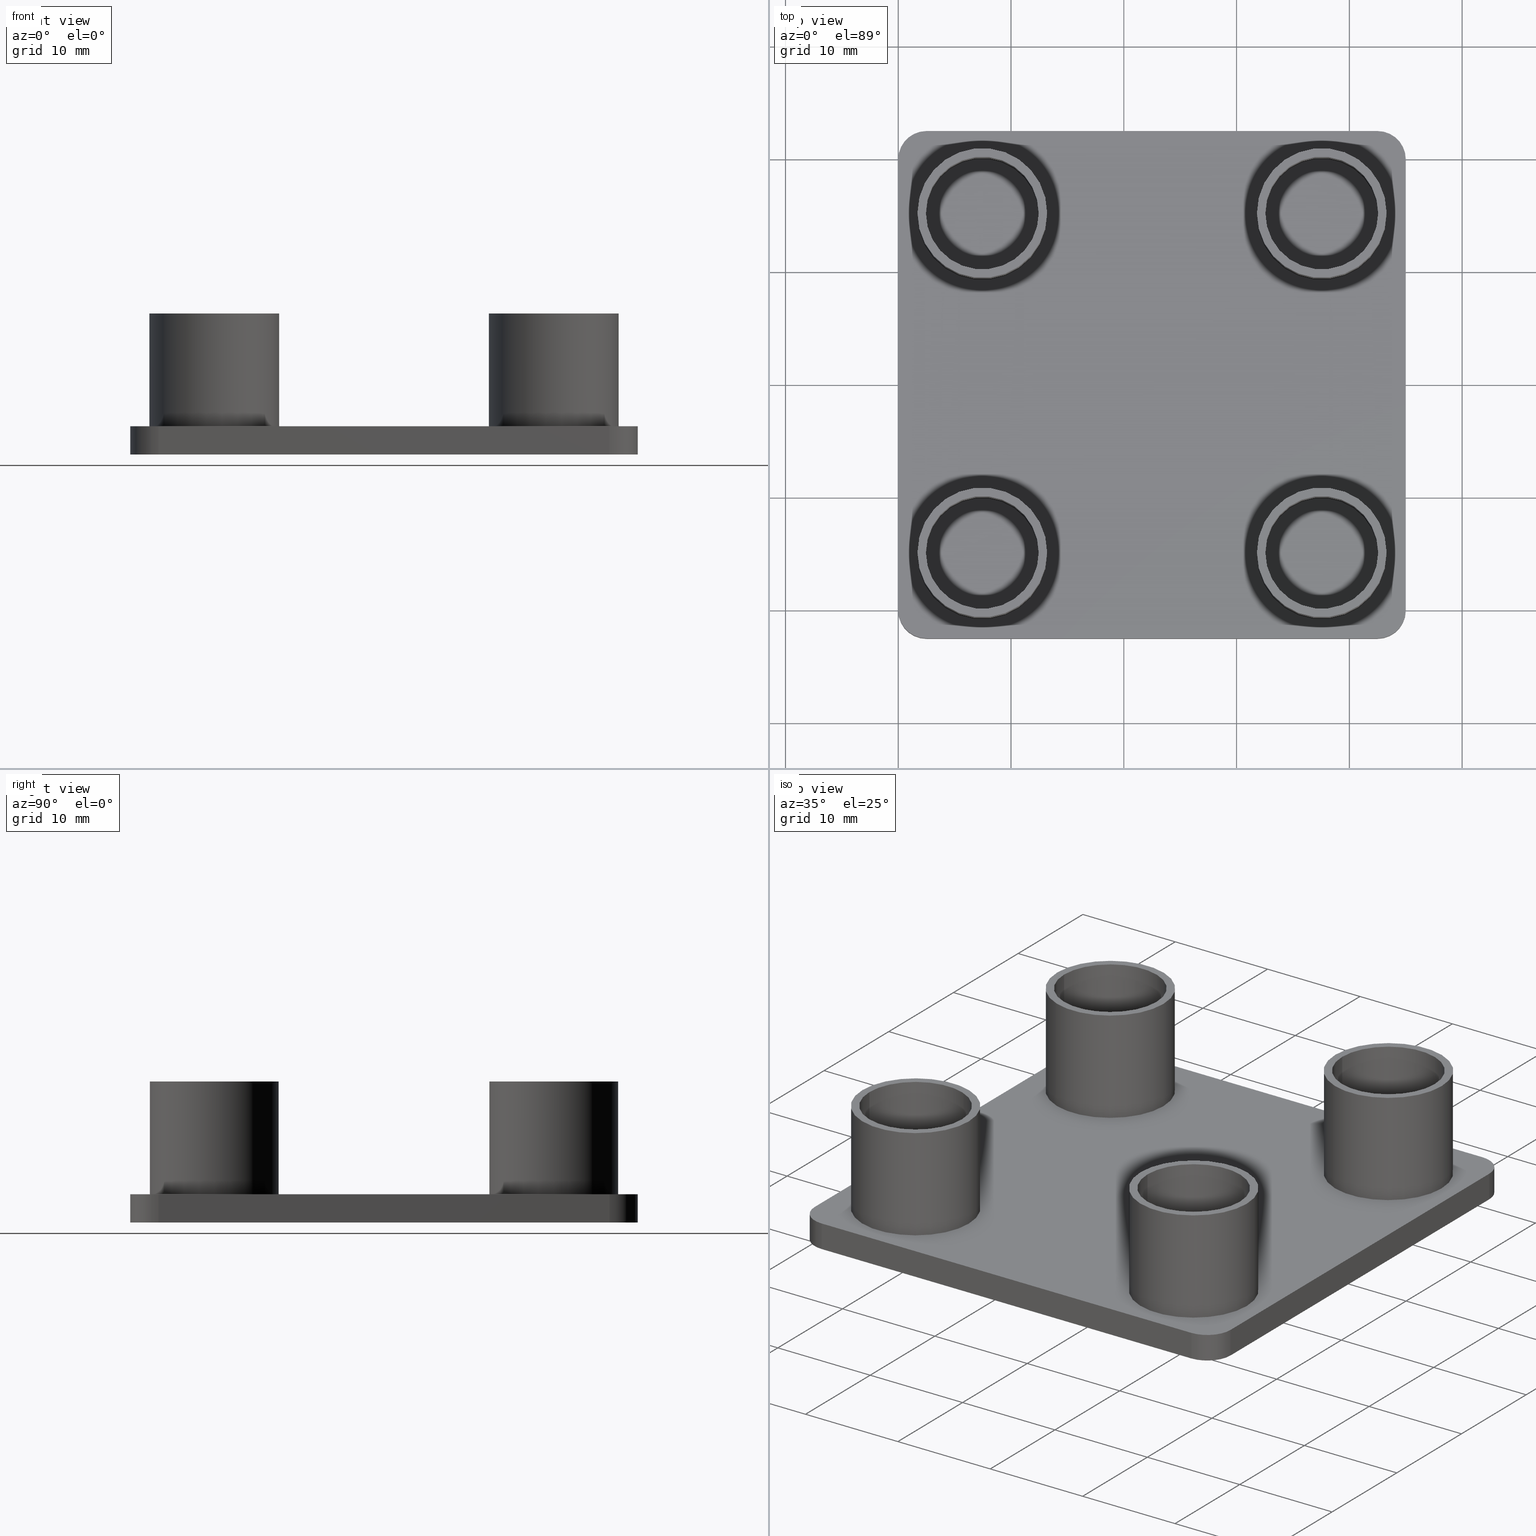
[diagram: canonical four-view strip — front | top / right | iso, engineering-drawing reading convention]
A machine part, canonical four-view strip (front | top / right | iso — engineering-drawing reading convention). The complete STEP part file that produces these views, byte-faithful:
ISO-10303-21;
HEADER;
/* Generated by software containing ST-Developer
 * from STEP Tools, Inc. (www.steptools.com) 
 */

FILE_DESCRIPTION(
/* description */ ('TAPPO 45X45 GIALLO'),
/* implementation_level */ '2;1');

FILE_NAME(
/* name */ 
'Q:\\Catalogo\\2_Accessori Dierre\\Per Download Web e catalogo cartace
o\\CATALOGO TAPPI DI CHIUSURA\\PAGINA 92\\DTPTR0000049.stp',
/* time_stamp */ '2018-11-08T14:25:58+01:00',
/* author */ ('fzagni'),
/* organization */ (''),
/* preprocessor_version */ 'ST-DEVELOPER v16.1',
/* originating_system */ 'Autodesk Inventor 2016',
/* authorisation */ '');

FILE_SCHEMA (('AUTOMOTIVE_DESIGN { 1 0 10303 214 3 1 1 }'));
ENDSEC;

DATA;
#10=MECHANICAL_DESIGN_GEOMETRIC_PRESENTATION_REPRESENTATION('',(#13),#631);
#11=SHAPE_REPRESENTATION_RELATIONSHIP('SRR','None',#640,#12);
#12=ADVANCED_BREP_SHAPE_REPRESENTATION('',(#14),#630);
#13=STYLED_ITEM('',(#649),#14);
#14=MANIFOLD_SOLID_BREP('None',#359);
#15=FACE_BOUND('',#80,.T.);
#16=FACE_BOUND('',#81,.T.);
#17=FACE_BOUND('',#82,.T.);
#18=FACE_BOUND('',#83,.T.);
#19=FACE_BOUND('',#90,.T.);
#20=FACE_BOUND('',#92,.T.);
#21=FACE_BOUND('',#94,.T.);
#22=FACE_BOUND('',#96,.T.);
#23=FACE_BOUND('',#98,.T.);
#24=FACE_BOUND('',#100,.T.);
#25=FACE_BOUND('',#102,.T.);
#26=FACE_BOUND('',#104,.T.);
#27=FACE_BOUND('',#106,.T.);
#28=FACE_BOUND('',#108,.T.);
#29=FACE_BOUND('',#110,.T.);
#30=FACE_BOUND('',#112,.T.);
#31=PLANE('',#364);
#32=PLANE('',#368);
#33=PLANE('',#372);
#34=PLANE('',#376);
#35=PLANE('',#377);
#36=PLANE('',#382);
#37=PLANE('',#384);
#38=PLANE('',#386);
#39=PLANE('',#388);
#40=PLANE('',#390);
#41=PLANE('',#395);
#42=PLANE('',#400);
#43=PLANE('',#405);
#44=PLANE('',#410);
#45=FACE_OUTER_BOUND('',#71,.T.);
#46=FACE_OUTER_BOUND('',#72,.T.);
#47=FACE_OUTER_BOUND('',#73,.T.);
#48=FACE_OUTER_BOUND('',#74,.T.);
#49=FACE_OUTER_BOUND('',#75,.T.);
#50=FACE_OUTER_BOUND('',#76,.T.);
#51=FACE_OUTER_BOUND('',#77,.T.);
#52=FACE_OUTER_BOUND('',#78,.T.);
#53=FACE_OUTER_BOUND('',#79,.T.);
#54=FACE_OUTER_BOUND('',#84,.T.);
#55=FACE_OUTER_BOUND('',#85,.T.);
#56=FACE_OUTER_BOUND('',#86,.T.);
#57=FACE_OUTER_BOUND('',#87,.T.);
#58=FACE_OUTER_BOUND('',#88,.T.);
#59=FACE_OUTER_BOUND('',#89,.T.);
#60=FACE_OUTER_BOUND('',#91,.T.);
#61=FACE_OUTER_BOUND('',#93,.T.);
#62=FACE_OUTER_BOUND('',#95,.T.);
#63=FACE_OUTER_BOUND('',#97,.T.);
#64=FACE_OUTER_BOUND('',#99,.T.);
#65=FACE_OUTER_BOUND('',#101,.T.);
#66=FACE_OUTER_BOUND('',#103,.T.);
#67=FACE_OUTER_BOUND('',#105,.T.);
#68=FACE_OUTER_BOUND('',#107,.T.);
#69=FACE_OUTER_BOUND('',#109,.T.);
#70=FACE_OUTER_BOUND('',#111,.T.);
#71=EDGE_LOOP('',(#241,#242,#243,#244));
#72=EDGE_LOOP('',(#245,#246,#247,#248));
#73=EDGE_LOOP('',(#249,#250,#251,#252));
#74=EDGE_LOOP('',(#253,#254,#255,#256));
#75=EDGE_LOOP('',(#257,#258,#259,#260));
#76=EDGE_LOOP('',(#261,#262,#263,#264));
#77=EDGE_LOOP('',(#265,#266,#267,#268));
#78=EDGE_LOOP('',(#269,#270,#271,#272));
#79=EDGE_LOOP('',(#273,#274,#275,#276,#277,#278,#279,#280));
#80=EDGE_LOOP('',(#281));
#81=EDGE_LOOP('',(#282));
#82=EDGE_LOOP('',(#283));
#83=EDGE_LOOP('',(#284));
#84=EDGE_LOOP('',(#285));
#85=EDGE_LOOP('',(#286));
#86=EDGE_LOOP('',(#287));
#87=EDGE_LOOP('',(#288));
#88=EDGE_LOOP('',(#289,#290,#291,#292,#293,#294,#295,#296));
#89=EDGE_LOOP('',(#297));
#90=EDGE_LOOP('',(#298));
#91=EDGE_LOOP('',(#299));
#92=EDGE_LOOP('',(#300));
#93=EDGE_LOOP('',(#301));
#94=EDGE_LOOP('',(#302));
#95=EDGE_LOOP('',(#303));
#96=EDGE_LOOP('',(#304));
#97=EDGE_LOOP('',(#305));
#98=EDGE_LOOP('',(#306));
#99=EDGE_LOOP('',(#307));
#100=EDGE_LOOP('',(#308));
#101=EDGE_LOOP('',(#309));
#102=EDGE_LOOP('',(#310));
#103=EDGE_LOOP('',(#311));
#104=EDGE_LOOP('',(#312));
#105=EDGE_LOOP('',(#313));
#106=EDGE_LOOP('',(#314));
#107=EDGE_LOOP('',(#315));
#108=EDGE_LOOP('',(#316));
#109=EDGE_LOOP('',(#317));
#110=EDGE_LOOP('',(#318));
#111=EDGE_LOOP('',(#319));
#112=EDGE_LOOP('',(#320));
#113=CIRCLE('',#362,2.49999999999);
#114=CIRCLE('',#363,2.49999999999);
#115=CIRCLE('',#366,2.49999999999);
#116=CIRCLE('',#367,2.49999999999);
#117=CIRCLE('',#370,2.49999999999);
#118=CIRCLE('',#371,2.49999999999);
#119=CIRCLE('',#374,2.49999999999);
#120=CIRCLE('',#375,2.49999999999);
#121=CIRCLE('',#378,5.749999999977);
#122=CIRCLE('',#379,5.749999999977);
#123=CIRCLE('',#380,5.749999999977);
#124=CIRCLE('',#381,5.749999999977);
#125=CIRCLE('',#383,4.99999999998);
#126=CIRCLE('',#385,4.99999999998);
#127=CIRCLE('',#387,4.99999999998);
#128=CIRCLE('',#389,4.99999999998);
#129=CIRCLE('',#392,5.749999999977);
#130=CIRCLE('',#394,4.99999999998);
#131=CIRCLE('',#397,5.749999999977);
#132=CIRCLE('',#399,4.99999999998);
#133=CIRCLE('',#402,5.749999999977);
#134=CIRCLE('',#404,4.99999999998);
#135=CIRCLE('',#407,5.749999999977);
#136=CIRCLE('',#409,4.99999999998);
#137=LINE('',#533,#153);
#138=LINE('',#537,#154);
#139=LINE('',#541,#155);
#140=LINE('',#543,#156);
#141=LINE('',#544,#157);
#142=LINE('',#549,#158);
#143=LINE('',#553,#159);
#144=LINE('',#555,#160);
#145=LINE('',#556,#161);
#146=LINE('',#561,#162);
#147=LINE('',#565,#163);
#148=LINE('',#567,#164);
#149=LINE('',#568,#165);
#150=LINE('',#573,#166);
#151=LINE('',#576,#167);
#152=LINE('',#577,#168);
#153=VECTOR('',#415,2.5);
#154=VECTOR('',#418,2.5);
#155=VECTOR('',#423,39.9999539998398);
#156=VECTOR('',#424,2.5);
#157=VECTOR('',#425,39.9999539998398);
#158=VECTOR('',#430,2.5);
#159=VECTOR('',#435,39.9999559998401);
#160=VECTOR('',#436,2.5);
#161=VECTOR('',#437,39.9999559998401);
#162=VECTOR('',#442,2.5);
#163=VECTOR('',#447,39.99995599984);
#164=VECTOR('',#448,2.5);
#165=VECTOR('',#449,39.99995599984);
#166=VECTOR('',#454,2.5);
#167=VECTOR('',#459,39.9999549998402);
#168=VECTOR('',#460,39.9999549998402);
#169=VERTEX_POINT('',#531);
#170=VERTEX_POINT('',#532);
#171=VERTEX_POINT('',#534);
#172=VERTEX_POINT('',#536);
#173=VERTEX_POINT('',#540);
#174=VERTEX_POINT('',#542);
#175=VERTEX_POINT('',#546);
#176=VERTEX_POINT('',#548);
#177=VERTEX_POINT('',#552);
#178=VERTEX_POINT('',#554);
#179=VERTEX_POINT('',#558);
#180=VERTEX_POINT('',#560);
#181=VERTEX_POINT('',#564);
#182=VERTEX_POINT('',#566);
#183=VERTEX_POINT('',#570);
#184=VERTEX_POINT('',#572);
#185=VERTEX_POINT('',#579);
#186=VERTEX_POINT('',#581);
#187=VERTEX_POINT('',#583);
#188=VERTEX_POINT('',#585);
#189=VERTEX_POINT('',#588);
#190=VERTEX_POINT('',#591);
#191=VERTEX_POINT('',#594);
#192=VERTEX_POINT('',#597);
#193=VERTEX_POINT('',#601);
#194=VERTEX_POINT('',#604);
#195=VERTEX_POINT('',#608);
#196=VERTEX_POINT('',#611);
#197=VERTEX_POINT('',#615);
#198=VERTEX_POINT('',#618);
#199=VERTEX_POINT('',#622);
#200=VERTEX_POINT('',#625);
#201=EDGE_CURVE('',#169,#170,#137,.T.);
#202=EDGE_CURVE('',#170,#171,#113,.T.);
#203=EDGE_CURVE('',#172,#171,#138,.T.);
#204=EDGE_CURVE('',#169,#172,#114,.T.);
#205=EDGE_CURVE('',#171,#173,#139,.T.);
#206=EDGE_CURVE('',#174,#173,#140,.T.);
#207=EDGE_CURVE('',#172,#174,#141,.T.);
#208=EDGE_CURVE('',#173,#175,#115,.T.);
#209=EDGE_CURVE('',#176,#175,#142,.T.);
#210=EDGE_CURVE('',#174,#176,#116,.T.);
#211=EDGE_CURVE('',#175,#177,#143,.T.);
#212=EDGE_CURVE('',#178,#177,#144,.T.);
#213=EDGE_CURVE('',#176,#178,#145,.T.);
#214=EDGE_CURVE('',#177,#179,#117,.T.);
#215=EDGE_CURVE('',#180,#179,#146,.T.);
#216=EDGE_CURVE('',#178,#180,#118,.T.);
#217=EDGE_CURVE('',#179,#181,#147,.T.);
#218=EDGE_CURVE('',#182,#181,#148,.T.);
#219=EDGE_CURVE('',#180,#182,#149,.T.);
#220=EDGE_CURVE('',#181,#183,#119,.T.);
#221=EDGE_CURVE('',#184,#183,#150,.T.);
#222=EDGE_CURVE('',#182,#184,#120,.T.);
#223=EDGE_CURVE('',#183,#170,#151,.T.);
#224=EDGE_CURVE('',#184,#169,#152,.T.);
#225=EDGE_CURVE('',#185,#185,#121,.T.);
#226=EDGE_CURVE('',#186,#186,#122,.T.);
#227=EDGE_CURVE('',#187,#187,#123,.T.);
#228=EDGE_CURVE('',#188,#188,#124,.T.);
#229=EDGE_CURVE('',#189,#189,#125,.T.);
#230=EDGE_CURVE('',#190,#190,#126,.T.);
#231=EDGE_CURVE('',#191,#191,#127,.T.);
#232=EDGE_CURVE('',#192,#192,#128,.T.);
#233=EDGE_CURVE('',#193,#193,#129,.T.);
#234=EDGE_CURVE('',#194,#194,#130,.T.);
#235=EDGE_CURVE('',#195,#195,#131,.T.);
#236=EDGE_CURVE('',#196,#196,#132,.T.);
#237=EDGE_CURVE('',#197,#197,#133,.T.);
#238=EDGE_CURVE('',#198,#198,#134,.T.);
#239=EDGE_CURVE('',#199,#199,#135,.T.);
#240=EDGE_CURVE('',#200,#200,#136,.T.);
#241=ORIENTED_EDGE('',*,*,#201,.T.);
#242=ORIENTED_EDGE('',*,*,#202,.T.);
#243=ORIENTED_EDGE('',*,*,#203,.F.);
#244=ORIENTED_EDGE('',*,*,#204,.F.);
#245=ORIENTED_EDGE('',*,*,#203,.T.);
#246=ORIENTED_EDGE('',*,*,#205,.T.);
#247=ORIENTED_EDGE('',*,*,#206,.F.);
#248=ORIENTED_EDGE('',*,*,#207,.F.);
#249=ORIENTED_EDGE('',*,*,#206,.T.);
#250=ORIENTED_EDGE('',*,*,#208,.T.);
#251=ORIENTED_EDGE('',*,*,#209,.F.);
#252=ORIENTED_EDGE('',*,*,#210,.F.);
#253=ORIENTED_EDGE('',*,*,#209,.T.);
#254=ORIENTED_EDGE('',*,*,#211,.T.);
#255=ORIENTED_EDGE('',*,*,#212,.F.);
#256=ORIENTED_EDGE('',*,*,#213,.F.);
#257=ORIENTED_EDGE('',*,*,#212,.T.);
#258=ORIENTED_EDGE('',*,*,#214,.T.);
#259=ORIENTED_EDGE('',*,*,#215,.F.);
#260=ORIENTED_EDGE('',*,*,#216,.F.);
#261=ORIENTED_EDGE('',*,*,#215,.T.);
#262=ORIENTED_EDGE('',*,*,#217,.T.);
#263=ORIENTED_EDGE('',*,*,#218,.F.);
#264=ORIENTED_EDGE('',*,*,#219,.F.);
#265=ORIENTED_EDGE('',*,*,#218,.T.);
#266=ORIENTED_EDGE('',*,*,#220,.T.);
#267=ORIENTED_EDGE('',*,*,#221,.F.);
#268=ORIENTED_EDGE('',*,*,#222,.F.);
#269=ORIENTED_EDGE('',*,*,#221,.T.);
#270=ORIENTED_EDGE('',*,*,#223,.T.);
#271=ORIENTED_EDGE('',*,*,#201,.F.);
#272=ORIENTED_EDGE('',*,*,#224,.F.);
#273=ORIENTED_EDGE('',*,*,#204,.T.);
#274=ORIENTED_EDGE('',*,*,#207,.T.);
#275=ORIENTED_EDGE('',*,*,#210,.T.);
#276=ORIENTED_EDGE('',*,*,#213,.T.);
#277=ORIENTED_EDGE('',*,*,#216,.T.);
#278=ORIENTED_EDGE('',*,*,#219,.T.);
#279=ORIENTED_EDGE('',*,*,#222,.T.);
#280=ORIENTED_EDGE('',*,*,#224,.T.);
#281=ORIENTED_EDGE('',*,*,#225,.F.);
#282=ORIENTED_EDGE('',*,*,#226,.F.);
#283=ORIENTED_EDGE('',*,*,#227,.F.);
#284=ORIENTED_EDGE('',*,*,#228,.F.);
#285=ORIENTED_EDGE('',*,*,#229,.F.);
#286=ORIENTED_EDGE('',*,*,#230,.F.);
#287=ORIENTED_EDGE('',*,*,#231,.F.);
#288=ORIENTED_EDGE('',*,*,#232,.F.);
#289=ORIENTED_EDGE('',*,*,#223,.F.);
#290=ORIENTED_EDGE('',*,*,#220,.F.);
#291=ORIENTED_EDGE('',*,*,#217,.F.);
#292=ORIENTED_EDGE('',*,*,#214,.F.);
#293=ORIENTED_EDGE('',*,*,#211,.F.);
#294=ORIENTED_EDGE('',*,*,#208,.F.);
#295=ORIENTED_EDGE('',*,*,#205,.F.);
#296=ORIENTED_EDGE('',*,*,#202,.F.);
#297=ORIENTED_EDGE('',*,*,#225,.T.);
#298=ORIENTED_EDGE('',*,*,#233,.F.);
#299=ORIENTED_EDGE('',*,*,#232,.T.);
#300=ORIENTED_EDGE('',*,*,#234,.F.);
#301=ORIENTED_EDGE('',*,*,#233,.T.);
#302=ORIENTED_EDGE('',*,*,#234,.T.);
#303=ORIENTED_EDGE('',*,*,#226,.T.);
#304=ORIENTED_EDGE('',*,*,#235,.F.);
#305=ORIENTED_EDGE('',*,*,#229,.T.);
#306=ORIENTED_EDGE('',*,*,#236,.F.);
#307=ORIENTED_EDGE('',*,*,#235,.T.);
#308=ORIENTED_EDGE('',*,*,#236,.T.);
#309=ORIENTED_EDGE('',*,*,#227,.T.);
#310=ORIENTED_EDGE('',*,*,#237,.F.);
#311=ORIENTED_EDGE('',*,*,#230,.T.);
#312=ORIENTED_EDGE('',*,*,#238,.F.);
#313=ORIENTED_EDGE('',*,*,#237,.T.);
#314=ORIENTED_EDGE('',*,*,#238,.T.);
#315=ORIENTED_EDGE('',*,*,#228,.T.);
#316=ORIENTED_EDGE('',*,*,#239,.F.);
#317=ORIENTED_EDGE('',*,*,#231,.T.);
#318=ORIENTED_EDGE('',*,*,#240,.F.);
#319=ORIENTED_EDGE('',*,*,#239,.T.);
#320=ORIENTED_EDGE('',*,*,#240,.T.);
#321=CYLINDRICAL_SURFACE('',#361,2.49999999999);
#322=CYLINDRICAL_SURFACE('',#365,2.49999999999);
#323=CYLINDRICAL_SURFACE('',#369,2.49999999999);
#324=CYLINDRICAL_SURFACE('',#373,2.49999999999);
#325=CYLINDRICAL_SURFACE('',#391,5.749999999977);
#326=CYLINDRICAL_SURFACE('',#393,4.99999999998);
#327=CYLINDRICAL_SURFACE('',#396,5.749999999977);
#328=CYLINDRICAL_SURFACE('',#398,4.99999999998);
#329=CYLINDRICAL_SURFACE('',#401,5.749999999977);
#330=CYLINDRICAL_SURFACE('',#403,4.99999999998);
#331=CYLINDRICAL_SURFACE('',#406,5.749999999977);
#332=CYLINDRICAL_SURFACE('',#408,4.99999999998);
#333=ADVANCED_FACE('',(#45),#321,.T.);
#334=ADVANCED_FACE('',(#46),#31,.F.);
#335=ADVANCED_FACE('',(#47),#322,.T.);
#336=ADVANCED_FACE('',(#48),#32,.F.);
#337=ADVANCED_FACE('',(#49),#323,.T.);
#338=ADVANCED_FACE('',(#50),#33,.F.);
#339=ADVANCED_FACE('',(#51),#324,.T.);
#340=ADVANCED_FACE('',(#52),#34,.F.);
#341=ADVANCED_FACE('',(#53,#15,#16,#17,#18),#35,.T.);
#342=ADVANCED_FACE('',(#54),#36,.T.);
#343=ADVANCED_FACE('',(#55),#37,.T.);
#344=ADVANCED_FACE('',(#56),#38,.T.);
#345=ADVANCED_FACE('',(#57),#39,.T.);
#346=ADVANCED_FACE('',(#58),#40,.F.);
#347=ADVANCED_FACE('',(#59,#19),#325,.T.);
#348=ADVANCED_FACE('',(#60,#20),#326,.F.);
#349=ADVANCED_FACE('',(#61,#21),#41,.T.);
#350=ADVANCED_FACE('',(#62,#22),#327,.T.);
#351=ADVANCED_FACE('',(#63,#23),#328,.F.);
#352=ADVANCED_FACE('',(#64,#24),#42,.T.);
#353=ADVANCED_FACE('',(#65,#25),#329,.T.);
#354=ADVANCED_FACE('',(#66,#26),#330,.F.);
#355=ADVANCED_FACE('',(#67,#27),#43,.T.);
#356=ADVANCED_FACE('',(#68,#28),#331,.T.);
#357=ADVANCED_FACE('',(#69,#29),#332,.F.);
#358=ADVANCED_FACE('',(#70,#30),#44,.T.);
#359=CLOSED_SHELL('',(#333,#334,#335,#336,#337,#338,#339,#340,#341,#342,
#343,#344,#345,#346,#347,#348,#349,#350,#351,#352,#353,#354,#355,#356,#357,
#358));
#360=AXIS2_PLACEMENT_3D('placement',#529,#411,#412);
#361=AXIS2_PLACEMENT_3D('',#530,#413,#414);
#362=AXIS2_PLACEMENT_3D('',#535,#416,#417);
#363=AXIS2_PLACEMENT_3D('',#538,#419,#420);
#364=AXIS2_PLACEMENT_3D('',#539,#421,#422);
#365=AXIS2_PLACEMENT_3D('',#545,#426,#427);
#366=AXIS2_PLACEMENT_3D('',#547,#428,#429);
#367=AXIS2_PLACEMENT_3D('',#550,#431,#432);
#368=AXIS2_PLACEMENT_3D('',#551,#433,#434);
#369=AXIS2_PLACEMENT_3D('',#557,#438,#439);
#370=AXIS2_PLACEMENT_3D('',#559,#440,#441);
#371=AXIS2_PLACEMENT_3D('',#562,#443,#444);
#372=AXIS2_PLACEMENT_3D('',#563,#445,#446);
#373=AXIS2_PLACEMENT_3D('',#569,#450,#451);
#374=AXIS2_PLACEMENT_3D('',#571,#452,#453);
#375=AXIS2_PLACEMENT_3D('',#574,#455,#456);
#376=AXIS2_PLACEMENT_3D('',#575,#457,#458);
#377=AXIS2_PLACEMENT_3D('',#578,#461,#462);
#378=AXIS2_PLACEMENT_3D('',#580,#463,#464);
#379=AXIS2_PLACEMENT_3D('',#582,#465,#466);
#380=AXIS2_PLACEMENT_3D('',#584,#467,#468);
#381=AXIS2_PLACEMENT_3D('',#586,#469,#470);
#382=AXIS2_PLACEMENT_3D('',#587,#471,#472);
#383=AXIS2_PLACEMENT_3D('',#589,#473,#474);
#384=AXIS2_PLACEMENT_3D('',#590,#475,#476);
#385=AXIS2_PLACEMENT_3D('',#592,#477,#478);
#386=AXIS2_PLACEMENT_3D('',#593,#479,#480);
#387=AXIS2_PLACEMENT_3D('',#595,#481,#482);
#388=AXIS2_PLACEMENT_3D('',#596,#483,#484);
#389=AXIS2_PLACEMENT_3D('',#598,#485,#486);
#390=AXIS2_PLACEMENT_3D('',#599,#487,#488);
#391=AXIS2_PLACEMENT_3D('',#600,#489,#490);
#392=AXIS2_PLACEMENT_3D('',#602,#491,#492);
#393=AXIS2_PLACEMENT_3D('',#603,#493,#494);
#394=AXIS2_PLACEMENT_3D('',#605,#495,#496);
#395=AXIS2_PLACEMENT_3D('',#606,#497,#498);
#396=AXIS2_PLACEMENT_3D('',#607,#499,#500);
#397=AXIS2_PLACEMENT_3D('',#609,#501,#502);
#398=AXIS2_PLACEMENT_3D('',#610,#503,#504);
#399=AXIS2_PLACEMENT_3D('',#612,#505,#506);
#400=AXIS2_PLACEMENT_3D('',#613,#507,#508);
#401=AXIS2_PLACEMENT_3D('',#614,#509,#510);
#402=AXIS2_PLACEMENT_3D('',#616,#511,#512);
#403=AXIS2_PLACEMENT_3D('',#617,#513,#514);
#404=AXIS2_PLACEMENT_3D('',#619,#515,#516);
#405=AXIS2_PLACEMENT_3D('',#620,#517,#518);
#406=AXIS2_PLACEMENT_3D('',#621,#519,#520);
#407=AXIS2_PLACEMENT_3D('',#623,#521,#522);
#408=AXIS2_PLACEMENT_3D('',#624,#523,#524);
#409=AXIS2_PLACEMENT_3D('',#626,#525,#526);
#410=AXIS2_PLACEMENT_3D('',#627,#527,#528);
#411=DIRECTION('axis',(0.,0.,1.));
#412=DIRECTION('refdir',(1.,0.,0.));
#413=DIRECTION('center_axis',(0.,0.,1.));
#414=DIRECTION('ref_axis',(1.,0.,0.));
#415=DIRECTION('',(0.,0.,-1.));
#416=DIRECTION('center_axis',(0.,0.,1.));
#417=DIRECTION('ref_axis',(1.,0.,0.));
#418=DIRECTION('',(0.,0.,-1.));
#419=DIRECTION('center_axis',(0.,0.,1.));
#420=DIRECTION('ref_axis',(1.,0.,0.));
#421=DIRECTION('center_axis',(2.5000026E-8,1.,0.));
#422=DIRECTION('ref_axis',(0.,0.,1.));
#423=DIRECTION('',(1.,-2.50000290422859E-8,0.));
#424=DIRECTION('',(0.,0.,-1.));
#425=DIRECTION('',(1.,-2.50000290422859E-8,0.));
#426=DIRECTION('center_axis',(0.,0.,1.));
#427=DIRECTION('ref_axis',(0.,-1.,0.));
#428=DIRECTION('center_axis',(0.,0.,1.));
#429=DIRECTION('ref_axis',(1.,0.,0.));
#430=DIRECTION('',(0.,0.,-1.));
#431=DIRECTION('center_axis',(0.,0.,1.));
#432=DIRECTION('ref_axis',(1.,0.,0.));
#433=DIRECTION('center_axis',(-1.,2.5000025E-8,0.));
#434=DIRECTION('ref_axis',(0.,0.,1.));
#435=DIRECTION('',(2.50000280143278E-8,1.,0.));
#436=DIRECTION('',(0.,0.,-1.));
#437=DIRECTION('',(2.50000280143278E-8,1.,0.));
#438=DIRECTION('center_axis',(0.,0.,1.));
#439=DIRECTION('ref_axis',(1.,0.,0.));
#440=DIRECTION('center_axis',(0.,0.,1.));
#441=DIRECTION('ref_axis',(1.,0.,0.));
#442=DIRECTION('',(0.,0.,-1.));
#443=DIRECTION('center_axis',(0.,0.,1.));
#444=DIRECTION('ref_axis',(1.,0.,0.));
#445=DIRECTION('center_axis',(0.,-1.,0.));
#446=DIRECTION('ref_axis',(0.,0.,-1.));
#447=DIRECTION('',(-1.,0.,0.));
#448=DIRECTION('',(0.,0.,-1.));
#449=DIRECTION('',(-1.,0.,0.));
#450=DIRECTION('center_axis',(0.,0.,1.));
#451=DIRECTION('ref_axis',(1.,0.,0.));
#452=DIRECTION('center_axis',(0.,0.,1.));
#453=DIRECTION('ref_axis',(1.,0.,0.));
#454=DIRECTION('',(0.,0.,-1.));
#455=DIRECTION('center_axis',(0.,0.,1.));
#456=DIRECTION('ref_axis',(1.,0.,0.));
#457=DIRECTION('center_axis',(1.,2.5000025E-8,0.));
#458=DIRECTION('ref_axis',(0.,0.,-1.));
#459=DIRECTION('',(2.5000028E-8,-1.,0.));
#460=DIRECTION('',(2.5000028E-8,-1.,0.));
#461=DIRECTION('center_axis',(0.,0.,1.));
#462=DIRECTION('ref_axis',(1.,0.,0.));
#463=DIRECTION('center_axis',(0.,0.,1.));
#464=DIRECTION('ref_axis',(1.,0.,0.));
#465=DIRECTION('center_axis',(0.,0.,1.));
#466=DIRECTION('ref_axis',(1.,0.,0.));
#467=DIRECTION('center_axis',(0.,0.,1.));
#468=DIRECTION('ref_axis',(1.,0.,0.));
#469=DIRECTION('center_axis',(0.,0.,1.));
#470=DIRECTION('ref_axis',(1.,0.,0.));
#471=DIRECTION('center_axis',(0.,0.,1.));
#472=DIRECTION('ref_axis',(1.,0.,0.));
#473=DIRECTION('center_axis',(0.,0.,-1.));
#474=DIRECTION('ref_axis',(1.,0.,0.));
#475=DIRECTION('center_axis',(0.,0.,1.));
#476=DIRECTION('ref_axis',(1.,0.,0.));
#477=DIRECTION('center_axis',(0.,0.,-1.));
#478=DIRECTION('ref_axis',(1.,0.,0.));
#479=DIRECTION('center_axis',(0.,0.,1.));
#480=DIRECTION('ref_axis',(1.,0.,0.));
#481=DIRECTION('center_axis',(0.,0.,-1.));
#482=DIRECTION('ref_axis',(1.,0.,0.));
#483=DIRECTION('center_axis',(0.,0.,1.));
#484=DIRECTION('ref_axis',(1.,0.,0.));
#485=DIRECTION('center_axis',(0.,0.,-1.));
#486=DIRECTION('ref_axis',(1.,0.,0.));
#487=DIRECTION('center_axis',(0.,0.,1.));
#488=DIRECTION('ref_axis',(1.,0.,0.));
#489=DIRECTION('center_axis',(0.,0.,1.));
#490=DIRECTION('ref_axis',(1.,0.,0.));
#491=DIRECTION('center_axis',(0.,0.,1.));
#492=DIRECTION('ref_axis',(1.,0.,0.));
#493=DIRECTION('center_axis',(0.,0.,-1.));
#494=DIRECTION('ref_axis',(1.,0.,0.));
#495=DIRECTION('center_axis',(0.,0.,-1.));
#496=DIRECTION('ref_axis',(1.,0.,0.));
#497=DIRECTION('center_axis',(0.,0.,1.));
#498=DIRECTION('ref_axis',(1.,0.,0.));
#499=DIRECTION('center_axis',(0.,0.,1.));
#500=DIRECTION('ref_axis',(1.,0.,0.));
#501=DIRECTION('center_axis',(0.,0.,1.));
#502=DIRECTION('ref_axis',(1.,0.,0.));
#503=DIRECTION('center_axis',(0.,0.,-1.));
#504=DIRECTION('ref_axis',(1.,0.,0.));
#505=DIRECTION('center_axis',(0.,0.,-1.));
#506=DIRECTION('ref_axis',(1.,0.,0.));
#507=DIRECTION('center_axis',(0.,0.,1.));
#508=DIRECTION('ref_axis',(1.,0.,0.));
#509=DIRECTION('center_axis',(0.,0.,1.));
#510=DIRECTION('ref_axis',(1.,0.,0.));
#511=DIRECTION('center_axis',(0.,0.,1.));
#512=DIRECTION('ref_axis',(1.,0.,0.));
#513=DIRECTION('center_axis',(0.,0.,-1.));
#514=DIRECTION('ref_axis',(1.,0.,0.));
#515=DIRECTION('center_axis',(0.,0.,-1.));
#516=DIRECTION('ref_axis',(1.,0.,0.));
#517=DIRECTION('center_axis',(0.,0.,1.));
#518=DIRECTION('ref_axis',(1.,0.,0.));
#519=DIRECTION('center_axis',(0.,0.,1.));
#520=DIRECTION('ref_axis',(1.,0.,0.));
#521=DIRECTION('center_axis',(0.,0.,1.));
#522=DIRECTION('ref_axis',(1.,0.,0.));
#523=DIRECTION('center_axis',(0.,0.,-1.));
#524=DIRECTION('ref_axis',(1.,0.,0.));
#525=DIRECTION('center_axis',(0.,0.,-1.));
#526=DIRECTION('ref_axis',(1.,0.,0.));
#527=DIRECTION('center_axis',(0.,0.,1.));
#528=DIRECTION('ref_axis',(1.,0.,0.));
#529=CARTESIAN_POINT('',(0.,0.,0.));
#530=CARTESIAN_POINT('Origin',(2.50000049998971,-19.9999774999201,0.));
#531=CARTESIAN_POINT('',(4.99999715E-7,-19.9999774999201,0.));
#532=CARTESIAN_POINT('',(4.99999715E-7,-19.9999774999201,-2.5));
#533=CARTESIAN_POINT('',(4.99999715E-7,-19.9999774999201,0.));
#534=CARTESIAN_POINT('',(2.50000049998971,-22.4999774999101,-2.5));
#535=CARTESIAN_POINT('Origin',(2.50000049998971,-19.9999774999201,-2.5));
#536=CARTESIAN_POINT('',(2.50000049998971,-22.4999774999101,0.));
#537=CARTESIAN_POINT('',(2.50000049998971,-22.4999774999101,0.));
#538=CARTESIAN_POINT('Origin',(2.50000049998971,-19.9999774999201,0.));
#539=CARTESIAN_POINT('Origin',(2.50000049998971,-22.4999774999101,0.));
#540=CARTESIAN_POINT('',(42.4999544998295,-22.49997849991,-2.5));
#541=CARTESIAN_POINT('',(2.50000049998971,-22.4999774999101,-2.5));
#542=CARTESIAN_POINT('',(42.4999544998295,-22.49997849991,0.));
#543=CARTESIAN_POINT('',(42.4999544998295,-22.49997849991,0.));
#544=CARTESIAN_POINT('',(2.50000049998971,-22.4999774999101,0.));
#545=CARTESIAN_POINT('Origin',(42.4999544998295,-19.99997849992,0.));
#546=CARTESIAN_POINT('',(44.99995449982,-19.99997849992,-2.5));
#547=CARTESIAN_POINT('Origin',(42.4999544998295,-19.99997849992,-2.5));
#548=CARTESIAN_POINT('',(44.99995449982,-19.99997849992,0.));
#549=CARTESIAN_POINT('',(44.99995449982,-19.99997849992,0.));
#550=CARTESIAN_POINT('Origin',(42.4999544998295,-19.99997849992,0.));
#551=CARTESIAN_POINT('Origin',(44.99995449982,-19.99997849992,0.));
#552=CARTESIAN_POINT('',(44.9999554998198,19.9999774999201,-2.5));
#553=CARTESIAN_POINT('',(44.9999544998199,-19.99997849992,-2.5));
#554=CARTESIAN_POINT('',(44.9999554998198,19.9999774999201,0.));
#555=CARTESIAN_POINT('',(44.9999554998198,19.9999774999201,0.));
#556=CARTESIAN_POINT('',(44.9999544998199,-19.99997849992,0.));
#557=CARTESIAN_POINT('Origin',(42.4999554998299,19.9999774999201,0.));
#558=CARTESIAN_POINT('',(42.4999554998299,22.4999774999101,-2.5));
#559=CARTESIAN_POINT('Origin',(42.4999554998299,19.9999774999201,-2.5));
#560=CARTESIAN_POINT('',(42.4999554998299,22.4999774999101,0.));
#561=CARTESIAN_POINT('',(42.4999554998299,22.4999774999101,0.));
#562=CARTESIAN_POINT('Origin',(42.4999554998299,19.9999774999201,0.));
#563=CARTESIAN_POINT('Origin',(42.4999554998299,22.4999774999101,0.));
#564=CARTESIAN_POINT('',(2.49999949998983,22.4999774999101,-2.5));
#565=CARTESIAN_POINT('',(42.4999554998299,22.4999774999101,-2.5));
#566=CARTESIAN_POINT('',(2.49999949998983,22.4999774999101,0.));
#567=CARTESIAN_POINT('',(2.49999949998983,22.4999774999101,0.));
#568=CARTESIAN_POINT('',(42.4999554998299,22.4999774999101,0.));
#569=CARTESIAN_POINT('Origin',(2.49999949998983,19.9999774999201,0.));
#570=CARTESIAN_POINT('',(-5.00000169E-7,19.9999774999201,-2.5));
#571=CARTESIAN_POINT('Origin',(2.49999949998983,19.9999774999201,-2.5));
#572=CARTESIAN_POINT('',(-5.00000169E-7,19.9999774999201,0.));
#573=CARTESIAN_POINT('',(-5.00000169E-7,19.9999774999201,0.));
#574=CARTESIAN_POINT('Origin',(2.49999949998983,19.9999774999201,0.));
#575=CARTESIAN_POINT('Origin',(-5.00000169E-7,19.9999774999201,0.));
#576=CARTESIAN_POINT('',(-5.00000169E-7,19.9999774999201,-2.5));
#577=CARTESIAN_POINT('',(-5.00000169E-7,19.9999774999201,0.));
#578=CARTESIAN_POINT('Origin',(-4.50000083393388,-26.9999788337341,0.));
#579=CARTESIAN_POINT('',(31.7999554998726,-15.05002249994,0.));
#580=CARTESIAN_POINT('Origin',(37.5499554998496,-15.05002249994,0.));
#581=CARTESIAN_POINT('',(1.69995549999275,-15.05002249994,0.));
#582=CARTESIAN_POINT('Origin',(7.44995549996974,-15.05002249994,0.));
#583=CARTESIAN_POINT('',(1.69995549999275,15.0500224999396,0.));
#584=CARTESIAN_POINT('Origin',(7.44995549996974,15.0500224999396,0.));
#585=CARTESIAN_POINT('',(31.7999554998726,15.0499774999398,0.));
#586=CARTESIAN_POINT('Origin',(37.5499554998496,15.0499774999398,0.));
#587=CARTESIAN_POINT('Origin',(-4.50000083393388,-26.9999788337341,0.));
#588=CARTESIAN_POINT('',(2.44995549998975,-15.05002249994,0.));
#589=CARTESIAN_POINT('Origin',(7.44995549996974,-15.05002249994,0.));
#590=CARTESIAN_POINT('Origin',(-4.50000083393388,-26.9999788337341,0.));
#591=CARTESIAN_POINT('',(2.44995549998975,15.0500224999396,0.));
#592=CARTESIAN_POINT('Origin',(7.44995549996974,15.0500224999396,0.));
#593=CARTESIAN_POINT('Origin',(-4.50000083393388,-26.9999788337341,0.));
#594=CARTESIAN_POINT('',(32.5499554998696,15.0499774999398,0.));
#595=CARTESIAN_POINT('Origin',(37.5499554998496,15.0499774999398,0.));
#596=CARTESIAN_POINT('Origin',(-4.50000083393388,-26.9999788337341,0.));
#597=CARTESIAN_POINT('',(32.5499554998696,-15.05002249994,0.));
#598=CARTESIAN_POINT('Origin',(37.5499554998496,-15.05002249994,0.));
#599=CARTESIAN_POINT('Origin',(-4.50000083393388,-26.9999788337341,-2.5));
#600=CARTESIAN_POINT('Origin',(37.5499554998496,-15.05002249994,0.));
#601=CARTESIAN_POINT('',(31.7999554998726,-15.05002249994,10.));
#602=CARTESIAN_POINT('Origin',(37.5499554998496,-15.05002249994,10.));
#603=CARTESIAN_POINT('Origin',(37.5499554998496,-15.05002249994,0.));
#604=CARTESIAN_POINT('',(32.5499554998696,-15.05002249994,10.));
#605=CARTESIAN_POINT('Origin',(37.5499554998496,-15.05002249994,10.));
#606=CARTESIAN_POINT('Origin',(30.6499507660105,-21.9500272337514,10.));
#607=CARTESIAN_POINT('Origin',(7.44995549996974,-15.05002249994,0.));
#608=CARTESIAN_POINT('',(1.69995549999275,-15.05002249994,10.));
#609=CARTESIAN_POINT('Origin',(7.44995549996974,-15.05002249994,10.));
#610=CARTESIAN_POINT('Origin',(7.44995549996974,-15.05002249994,0.));
#611=CARTESIAN_POINT('',(2.44995549998975,-15.05002249994,10.));
#612=CARTESIAN_POINT('Origin',(7.44995549996974,-15.05002249994,10.));
#613=CARTESIAN_POINT('Origin',(0.549950766130678,-21.9500272337514,10.));
#614=CARTESIAN_POINT('Origin',(7.44995549996974,15.0500224999396,0.));
#615=CARTESIAN_POINT('',(1.69995549999275,15.0500224999396,10.));
#616=CARTESIAN_POINT('Origin',(7.44995549996974,15.0500224999396,10.));
#617=CARTESIAN_POINT('Origin',(7.44995549996974,15.0500224999396,0.));
#618=CARTESIAN_POINT('',(2.44995549998975,15.0500224999396,10.));
#619=CARTESIAN_POINT('Origin',(7.44995549996974,15.0500224999396,10.));
#620=CARTESIAN_POINT('Origin',(0.549950766050188,8.15001776604822,10.));
#621=CARTESIAN_POINT('Origin',(37.5499554998496,15.0499774999398,0.));
#622=CARTESIAN_POINT('',(31.7999554998726,15.0499774999398,10.));
#623=CARTESIAN_POINT('Origin',(37.5499554998496,15.0499774999398,10.));
#624=CARTESIAN_POINT('Origin',(37.5499554998496,15.0499774999398,0.));
#625=CARTESIAN_POINT('',(32.5499554998696,15.0499774999398,10.));
#626=CARTESIAN_POINT('Origin',(37.5499554998496,15.0499774999398,10.));
#627=CARTESIAN_POINT('Origin',(30.6499507659301,8.14997276604845,10.));
#628=UNCERTAINTY_MEASURE_WITH_UNIT(LENGTH_MEASURE(0.01),#632,
'DISTANCE_ACCURACY_VALUE',
'Maximum model space distance between geometric entities at asserted c
onnectivities');
#629=UNCERTAINTY_MEASURE_WITH_UNIT(LENGTH_MEASURE(1.E-6),#632,
'DISTANCE_ACCURACY_VALUE',
'Maximum model space distance between geometric entities at asserted c
onnectivities');
#630=(
GEOMETRIC_REPRESENTATION_CONTEXT(3)
GLOBAL_UNCERTAINTY_ASSIGNED_CONTEXT((#628))
GLOBAL_UNIT_ASSIGNED_CONTEXT((#632,#635,#633))
REPRESENTATION_CONTEXT('','3D')
);
#631=(
GEOMETRIC_REPRESENTATION_CONTEXT(3)
GLOBAL_UNCERTAINTY_ASSIGNED_CONTEXT((#629))
GLOBAL_UNIT_ASSIGNED_CONTEXT((#632,#635,#633))
REPRESENTATION_CONTEXT('','3D')
);
#632=(
LENGTH_UNIT()
NAMED_UNIT(*)
SI_UNIT(.MILLI.,.METRE.)
);
#633=(
NAMED_UNIT(*)
SI_UNIT($,.STERADIAN.)
SOLID_ANGLE_UNIT()
);
#634=DIMENSIONAL_EXPONENTS(0.,0.,0.,0.,0.,0.,0.);
#635=(
CONVERSION_BASED_UNIT('degree',#637)
NAMED_UNIT(#634)
PLANE_ANGLE_UNIT()
);
#636=(
NAMED_UNIT(*)
PLANE_ANGLE_UNIT()
SI_UNIT($,.RADIAN.)
);
#637=PLANE_ANGLE_MEASURE_WITH_UNIT(PLANE_ANGLE_MEASURE(0.01745329252),#636);
#638=SHAPE_DEFINITION_REPRESENTATION(#639,#640);
#639=PRODUCT_DEFINITION_SHAPE('',$,#642);
#640=SHAPE_REPRESENTATION('',(#360),#630);
#641=PRODUCT_DEFINITION_CONTEXT('part definition',#646,'design');
#642=PRODUCT_DEFINITION('DTPTR0000049','DTPTR0000049',#643,#641);
#643=PRODUCT_DEFINITION_FORMATION('','A',#648);
#644=PRODUCT_RELATED_PRODUCT_CATEGORY('DTPTR0000049','DTPTR0000049',(#648));
#645=APPLICATION_PROTOCOL_DEFINITION('international standard',
'automotive_design',2009,#646);
#646=APPLICATION_CONTEXT(
'Core Data for Automotive Mechanical Design Process');
#647=PRODUCT_CONTEXT('part definition',#646,'mechanical');
#648=PRODUCT('DTPTR0000049','DTPTR0000049',$,(#647));
#649=PRESENTATION_STYLE_ASSIGNMENT((#650));
#650=SURFACE_STYLE_USAGE(.BOTH.,#651);
#651=SURFACE_SIDE_STYLE('',(#652));
#652=SURFACE_STYLE_FILL_AREA(#653);
#653=FILL_AREA_STYLE('',(#654));
#654=FILL_AREA_STYLE_COLOUR('',#655);
#655=COLOUR_RGB('',0.866666666666667,0.866666666666667,0.0509803921568627);
ENDSEC;
END-ISO-10303-21;
